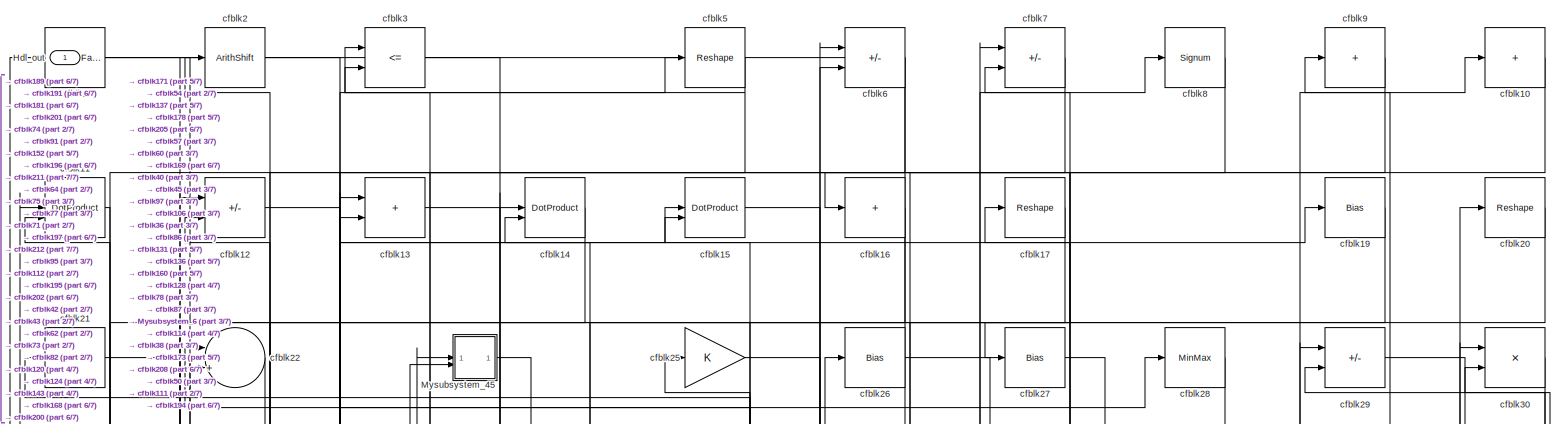
[diagram: root canvas - part 1/7, full width, top band]
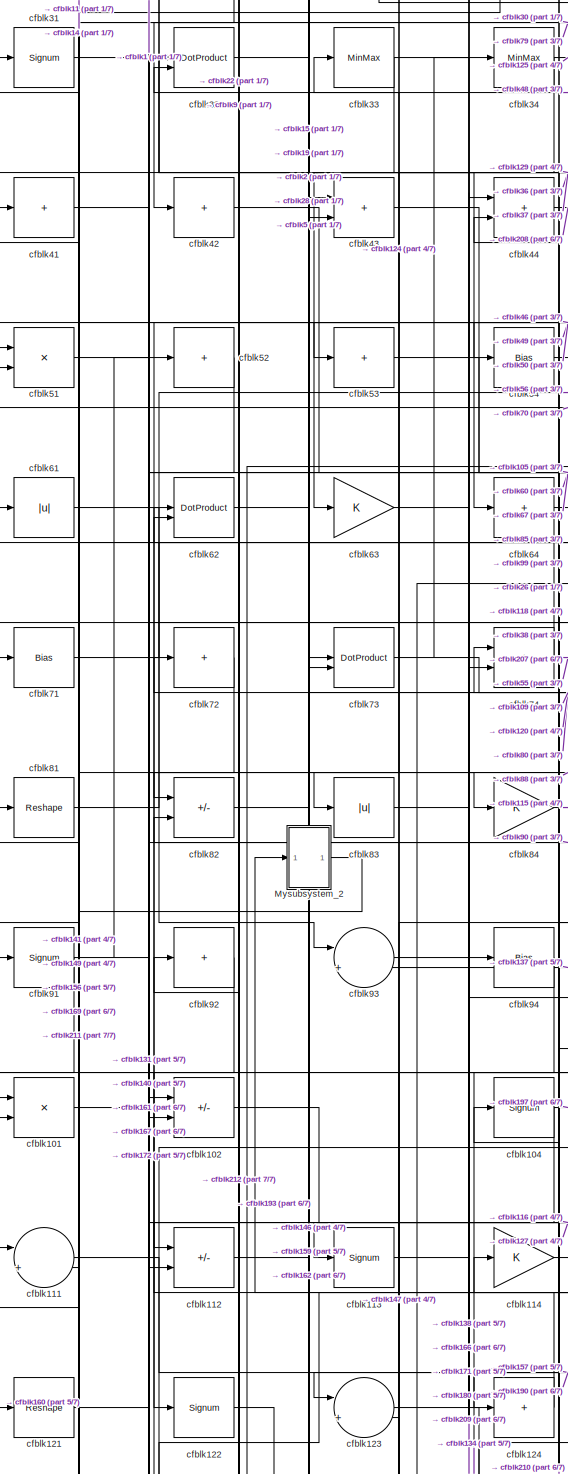
[diagram: root canvas - part 2/7, middle left region]
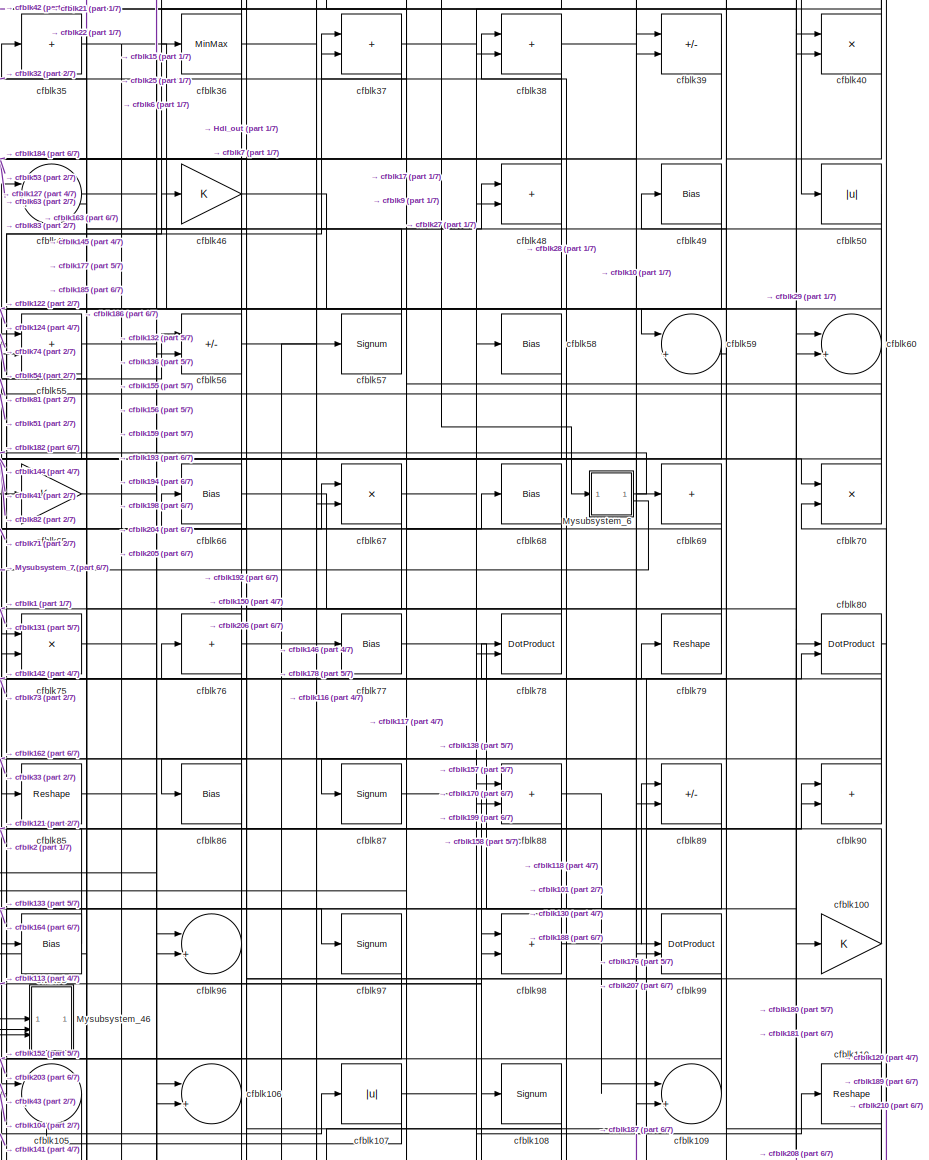
[diagram: root canvas - part 3/7, top right region]
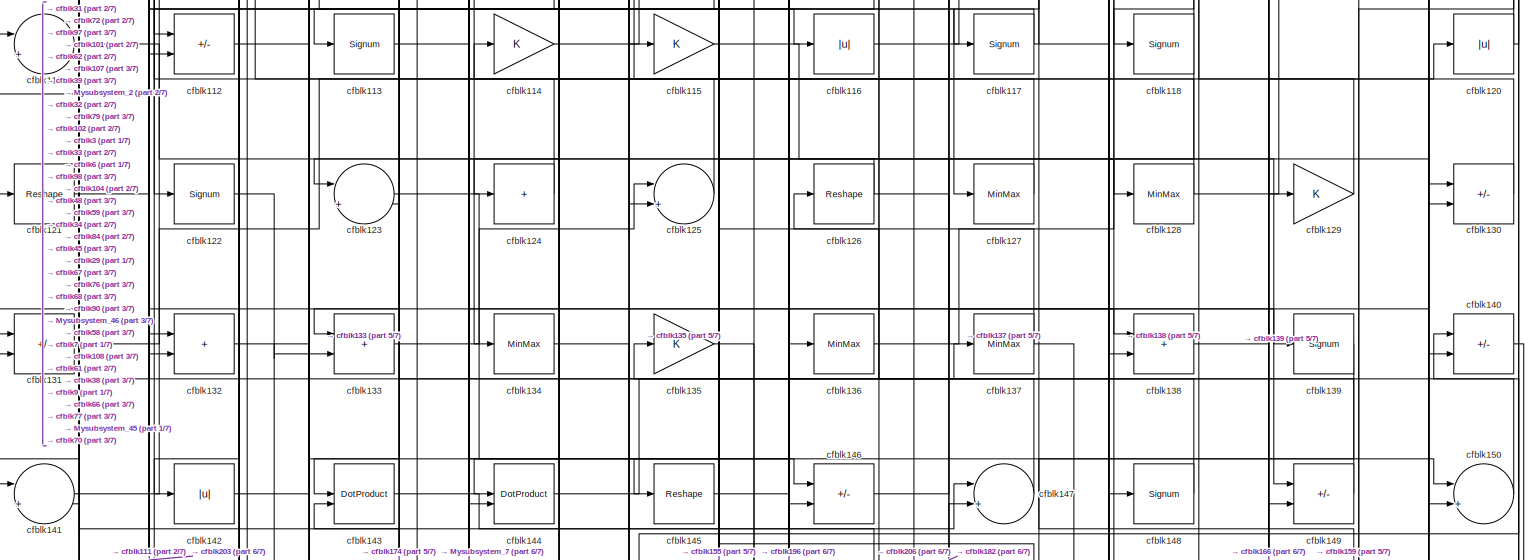
[diagram: root canvas - part 4/7, full width, middle band]
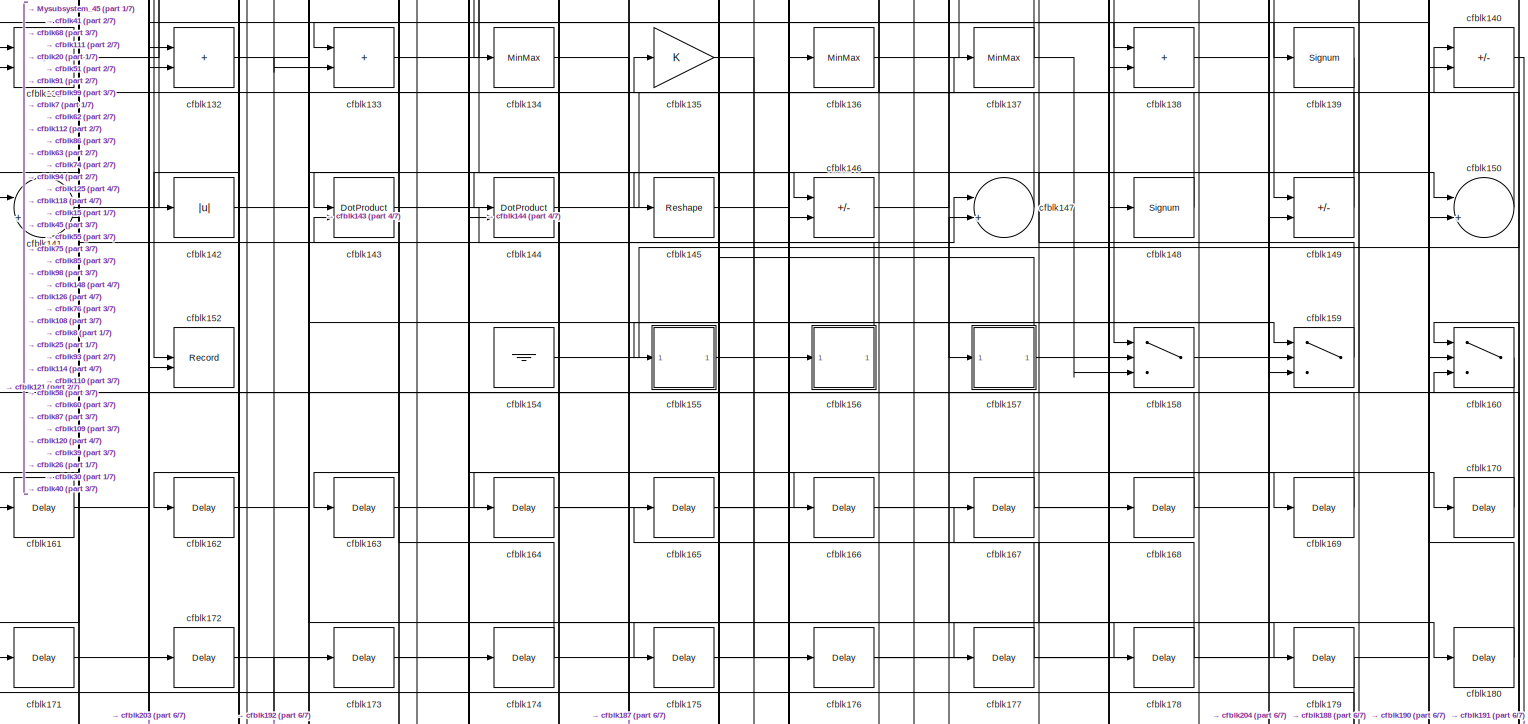
[diagram: root canvas - part 5/7, full width, bottom band]
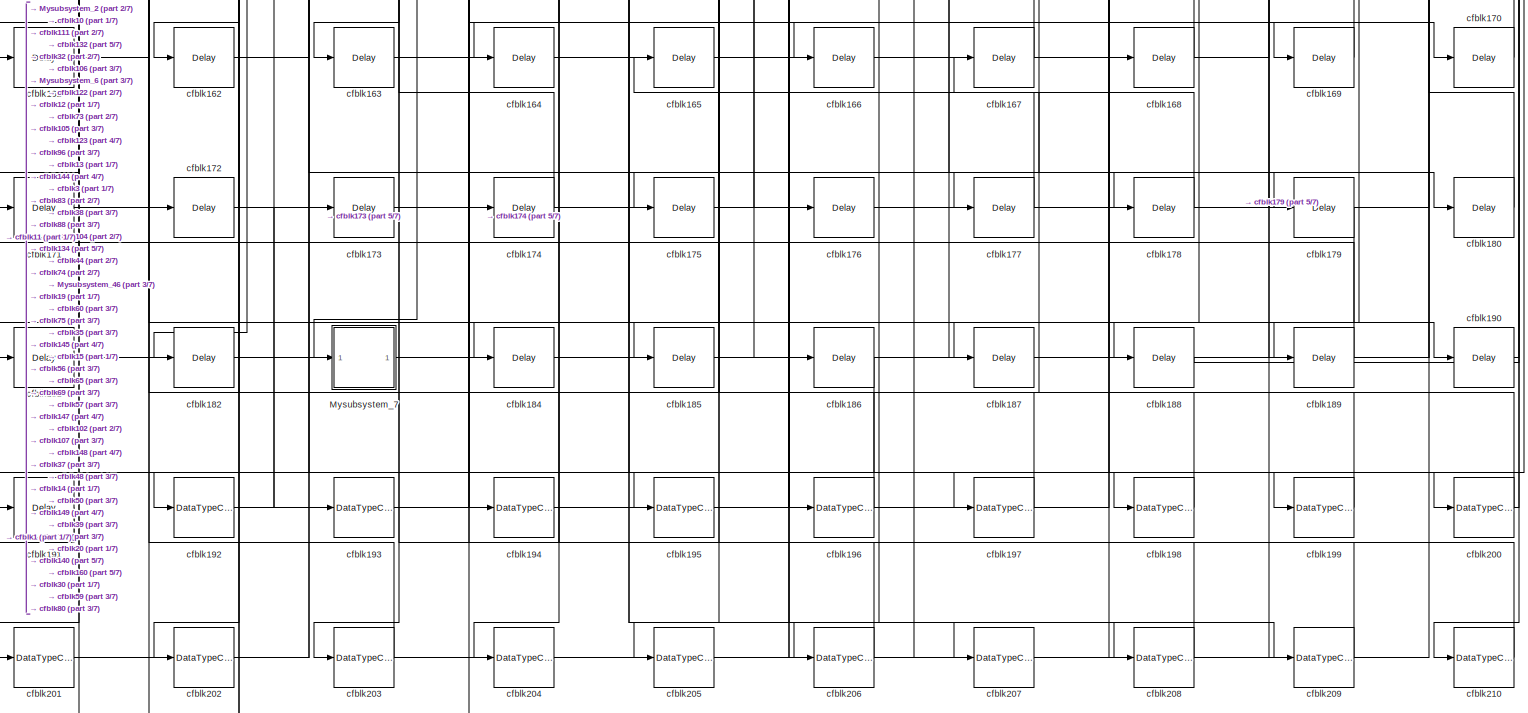
[diagram: root canvas - part 6/7, full width, bottom band]
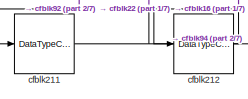
[diagram: root canvas - part 7/7, bottom left region]
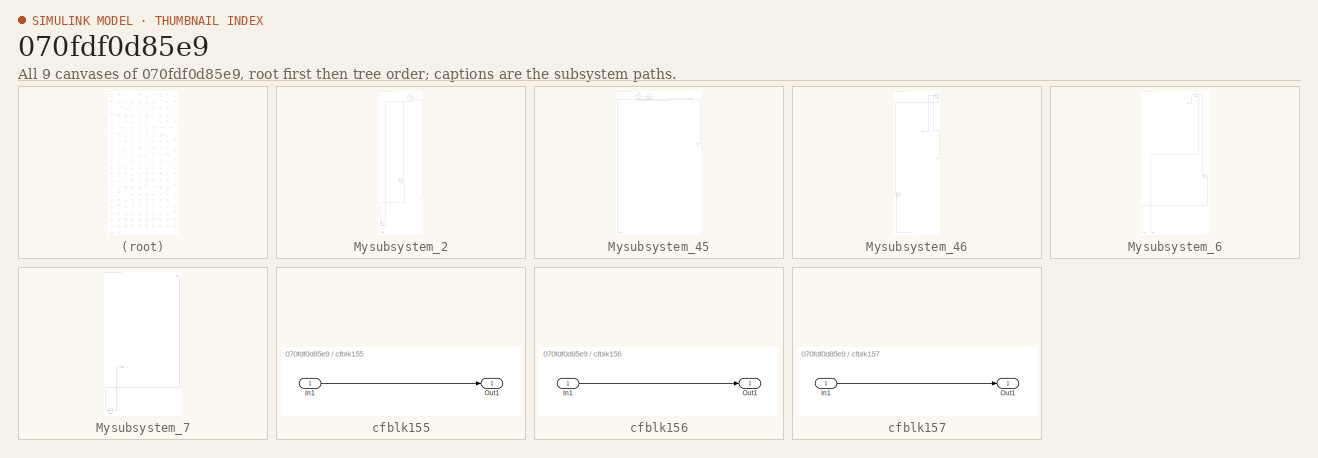
[diagram: thumbnail index - all 9 canvases of the model, root first then tree order]
MODEL slx_070fdf0d85e9
KIND model
CONFIG AbsTol = auto
CONFIG EnableMultiTasking = off
CONFIG FixedStep = auto
CONFIG MaxStep = auto
CONFIG MinStep = auto
CONFIG RelTol = 1e-3
CONFIG SampleTimeConstraint = Unconstrained
CONFIG SolverName = VariableStepAuto
CONFIG StartTime = 0.0
CONFIG StopTime = 10.0
BLOCK [Outport] Hdl_out
  OutDataTypeStr = uint8
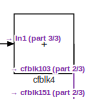
[diagram: Mysubsystem_2 - part 1/3, top right region]
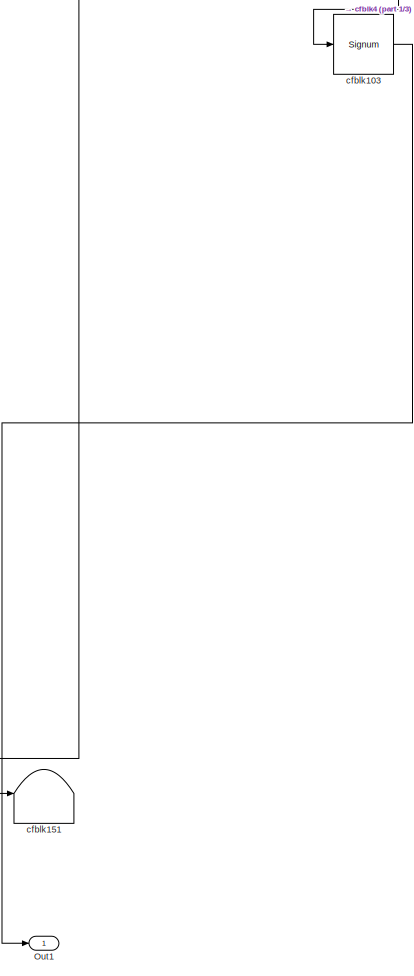
[diagram: Mysubsystem_2 - part 2/3, bottom left region]
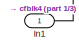
[diagram: Mysubsystem_2 - part 3/3, bottom right region]
BLOCK [SubSystem] Mysubsystem_2
  RTWFcnName = Mysubsystem_2
  RTWFcnNameOpts = User specified
  RTWFileNameOpts = Use function name
  RTWSystemCode = Reusable function
  TreatAsAtomicUnit = on
BLOCK [Inport] Mysubsystem_2/In1
BLOCK [Outport] Mysubsystem_2/Out1
BLOCK [Signum] Mysubsystem_2/cfblk103
BLOCK [Terminator] Mysubsystem_2/cfblk151
BLOCK [Sum] Mysubsystem_2/cfblk4
  IconShape = rectangular
  Inputs = +
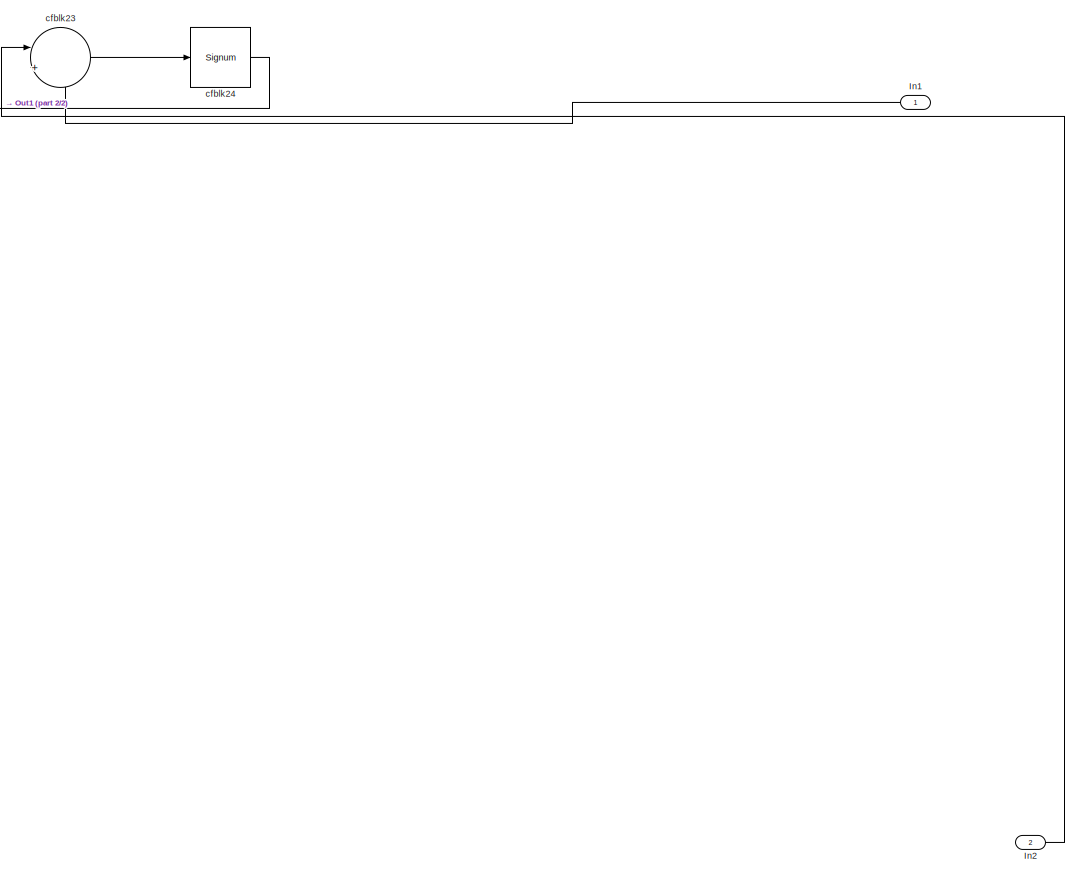
[diagram: Mysubsystem_45 - part 1/2, full width, top band]
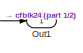
[diagram: Mysubsystem_45 - part 2/2, bottom left region]
BLOCK [SubSystem] Mysubsystem_45
  RTWFcnName = Mysubsystem_45
  RTWFcnNameOpts = User specified
  RTWFileNameOpts = Use function name
  RTWSystemCode = Reusable function
  TreatAsAtomicUnit = on
BLOCK [Inport] Mysubsystem_45/In1
BLOCK [Inport] Mysubsystem_45/In2
  Port = 2
BLOCK [Outport] Mysubsystem_45/Out1
BLOCK [Sum] Mysubsystem_45/cfblk23
  Inputs = |++
BLOCK [Signum] Mysubsystem_45/cfblk24
BLOCK [SubSystem] Mysubsystem_46
  RTWFcnName = Mysubsystem_46
  RTWFcnNameOpts = User specified
  RTWFileNameOpts = Use function name
  RTWSystemCode = Reusable function
  TreatAsAtomicUnit = on
BLOCK [Inport] Mysubsystem_46/In1
BLOCK [Inport] Mysubsystem_46/In2
  Port = 2
BLOCK [Inport] Mysubsystem_46/In3
  Port = 3
BLOCK [Record] Mysubsystem_46/cfblk153
  CompatibilityTag = XY
  FileSettingsInternal = {"entries":[{"content":{"excelSettings":{"content":{},"type":"Streamout.ExcelSettings"}},"type":"Streamout.FileSettingStorage","uuid":""}],"packageUris":["http:\/\/schema.mathworks.com\/mf0\/streamout_blocks\/R2020a"],"version":"1.0"}
  Layout = [1 1]
  SignalsInternal = {"entries":[{"content":{},"type":"RecordBlkView.InputSignals","uuid":""}],"packageUris":["http:\/\/schema.mathworks.com\/mf0\/streamout_blocks\/R2020a"],"version":"1.0"}
  VisualizationBindings = {"xyplotplugin":{"info":[{"series":[],"subplotID":1}]}}
  st = -1
BLOCK [DotProduct] Mysubsystem_46/cfblk47
  OutDataTypeStr = Inherit: Inherit via internal rule
BLOCK [SubSystem] Mysubsystem_6
  RTWFcnName = Mysubsystem_6
  RTWFcnNameOpts = User specified
  RTWFileNameOpts = Use function name
  RTWSystemCode = Reusable function
  TreatAsAtomicUnit = on
BLOCK [Inport] Mysubsystem_6/In1
BLOCK [Outport] Mysubsystem_6/Out1
BLOCK [Outport] Mysubsystem_6/Out2
  Port = 2
BLOCK [Gain] Mysubsystem_6/cfblk119
BLOCK [Bias] Mysubsystem_6/cfblk18
  Bias = 0.0
  SaturateOnIntegerOverflow = off
BLOCK [SubSystem] Mysubsystem_7
  RTWFcnName = Mysubsystem_7
  RTWFcnNameOpts = User specified
  RTWFileNameOpts = Use function name
  RTWSystemCode = Reusable function
  TreatAsAtomicUnit = on
BLOCK [Inport] Mysubsystem_7/In1
BLOCK [Outport] Mysubsystem_7/Out1
BLOCK [Delay] Mysubsystem_7/cfblk183
  InputPortMap = u0
  SampleTime = 1
BLOCK [Reference] cfblk1  REF=hdlsllib/Logic and Bit
Operations/Detect Fall
Nonpositive
  SourceBlock = hdlsllib/Logic and Bit\nOperations/Detect Fall\nNonpositive
  SourceType = Detect Fall Nonpositive
BLOCK [Sum] cfblk10
  IconShape = rectangular
  Inputs = +
  OutDataTypeStr = uint8
BLOCK [Gain] cfblk100
  OutDataTypeStr = uint8
BLOCK [Product] cfblk101
  Inputs = */
  OutDataTypeStr = uint8
  RndMeth = Zero
  SaturateOnIntegerOverflow = on
BLOCK [Sum] cfblk102
  IconShape = rectangular
  Inputs = +-
  OutDataTypeStr = uint8
BLOCK [Signum] cfblk104
BLOCK [Sum] cfblk105
  Inputs = |++
  OutDataTypeStr = uint8
BLOCK [Sum] cfblk106
  Inputs = |++
  OutDataTypeStr = uint8
BLOCK [Abs] cfblk107
  OutDataTypeStr = uint8
  SaturateOnIntegerOverflow = off
BLOCK [Signum] cfblk108
BLOCK [Sum] cfblk109
  Inputs = |++
  OutDataTypeStr = uint8
BLOCK [DotProduct] cfblk11
  OutDataTypeStr = uint8
BLOCK [Reshape] cfblk110
BLOCK [Sum] cfblk111
  Inputs = |++
  OutDataTypeStr = uint8
BLOCK [Sum] cfblk112
  IconShape = rectangular
  Inputs = +-
  OutDataTypeStr = uint8
BLOCK [Signum] cfblk113
BLOCK [Gain] cfblk114
  OutDataTypeStr = uint8
BLOCK [Gain] cfblk115
  OutDataTypeStr = uint8
BLOCK [Abs] cfblk116
  OutDataTypeStr = uint8
  SaturateOnIntegerOverflow = off
BLOCK [Signum] cfblk117
BLOCK [Signum] cfblk118
BLOCK [Sum] cfblk12
  IconShape = rectangular
  Inputs = +-
  OutDataTypeStr = uint8
BLOCK [Abs] cfblk120
  OutDataTypeStr = uint8
  SaturateOnIntegerOverflow = off
BLOCK [Reshape] cfblk121
BLOCK [Signum] cfblk122
BLOCK [Sum] cfblk123
  Inputs = |++
  OutDataTypeStr = uint8
BLOCK [Sum] cfblk124
  IconShape = rectangular
  Inputs = +
  OutDataTypeStr = uint8
BLOCK [Sum] cfblk125
  Inputs = |++
  OutDataTypeStr = uint8
BLOCK [Reshape] cfblk126
BLOCK [MinMax] cfblk127
  OutDataTypeStr = uint8
BLOCK [MinMax] cfblk128
  OutDataTypeStr = uint8
BLOCK [Gain] cfblk129
  OutDataTypeStr = uint8
BLOCK [Sum] cfblk13
  IconShape = rectangular
  OutDataTypeStr = uint8
BLOCK [Sum] cfblk130
  IconShape = rectangular
  Inputs = +-
  OutDataTypeStr = uint8
BLOCK [Sum] cfblk131
  IconShape = rectangular
  Inputs = +-
  OutDataTypeStr = uint8
BLOCK [Sum] cfblk132
  IconShape = rectangular
  OutDataTypeStr = uint8
BLOCK [Sum] cfblk133
  IconShape = rectangular
  OutDataTypeStr = uint8
BLOCK [MinMax] cfblk134
  OutDataTypeStr = uint8
BLOCK [Gain] cfblk135
  OutDataTypeStr = uint8
BLOCK [MinMax] cfblk136
  OutDataTypeStr = uint8
BLOCK [MinMax] cfblk137
  OutDataTypeStr = uint8
BLOCK [Sum] cfblk138
  IconShape = rectangular
  OutDataTypeStr = uint8
BLOCK [Signum] cfblk139
BLOCK [DotProduct] cfblk14
  OutDataTypeStr = uint8
BLOCK [Sum] cfblk140
  IconShape = rectangular
  Inputs = +-
  OutDataTypeStr = uint8
BLOCK [Sum] cfblk141
  Inputs = |++
  OutDataTypeStr = uint8
BLOCK [Abs] cfblk142
  OutDataTypeStr = uint8
  SaturateOnIntegerOverflow = off
BLOCK [DotProduct] cfblk143
  OutDataTypeStr = uint8
BLOCK [DotProduct] cfblk144
  OutDataTypeStr = uint8
BLOCK [Reshape] cfblk145
BLOCK [Sum] cfblk146
  IconShape = rectangular
  Inputs = +-
  OutDataTypeStr = uint8
BLOCK [Sum] cfblk147
  Inputs = |++
  OutDataTypeStr = uint8
BLOCK [Signum] cfblk148
BLOCK [Sum] cfblk149
  IconShape = rectangular
  Inputs = +-
  OutDataTypeStr = uint8
BLOCK [DotProduct] cfblk15
  OutDataTypeStr = uint8
BLOCK [Sum] cfblk150
  Inputs = |++
  OutDataTypeStr = uint8
BLOCK [Record] cfblk152
  CompatibilityTag = XY
  FileSettingsInternal = {"entries":[{"content":{"excelSettings":{"content":{},"type":"Streamout.ExcelSettings"}},"type":"Streamout.FileSettingStorage","uuid":""}],"packageUris":["http:\/\/schema.mathworks.com\/mf0\/streamout_blocks\/R2020a"],"version":"1.0"}
  Layout = [1 1]
  SignalsInternal = {"entries":[{"content":{"signals":[{"content":{"blockPath":[],"dimensions":[1],"domain":"","lineColor":"#a2142f","plots":[1],"port":1,"signalID":13158,"signalName":"cfblk99"},"type":"RecordBlkView.Signal","uuid":""},{"content":{"blockPath":[],"dimensions":[1],"domain":"","lineColor":"#139fff","plots":[1],"port":2,"signalID":13161,"signalName":"cfblk20"},"type":"RecordBlkView.Signal","uuid":""}]},"...<+142ch>
  VisualizationBindings = {"xyplotplugin":{"info":[{"series":[{"bindingParametersList":[{"parameter":"X-Axis","signalID":13158,"signalName":"cfblk99"},{"parameter":"Y-Axis","signalID":13161,"signalName":"cfblk20"}],"seriesID":6680}],"subplotID":1}]}}
  st = -1
BLOCK [Ground] cfblk154
BLOCK [SubSystem] cfblk155
  LibrarySourceBlock = hdlsllib/Ports &\nSubsystems/Subsystem
BLOCK [Inport] cfblk155/In1
BLOCK [Outport] cfblk155/Out1
BLOCK [SubSystem] cfblk156
  LibrarySourceBlock = hdlsllib/Ports &\nSubsystems/Subsystem
BLOCK [Inport] cfblk156/In1
BLOCK [Outport] cfblk156/Out1
BLOCK [SubSystem] cfblk157
  LibrarySourceBlock = hdlsllib/Ports &\nSubsystems/Subsystem
BLOCK [Inport] cfblk157/In1
BLOCK [Outport] cfblk157/Out1
BLOCK [Switch] cfblk158
  InputSameDT = off
  OutDataTypeStr = uint8
  SaturateOnIntegerOverflow = off
BLOCK [Switch] cfblk159
  InputSameDT = off
  OutDataTypeStr = uint8
  SaturateOnIntegerOverflow = off
BLOCK [Sum] cfblk16
  IconShape = rectangular
  Inputs = +
  OutDataTypeStr = uint8
BLOCK [Switch] cfblk160
  InputSameDT = off
  OutDataTypeStr = uint8
  SaturateOnIntegerOverflow = off
BLOCK [Delay] cfblk161
  InputPortMap = u0
  SampleTime = 1
BLOCK [Delay] cfblk162
  InputPortMap = u0
  SampleTime = 1
BLOCK [Delay] cfblk163
  InputPortMap = u0
  SampleTime = 1
BLOCK [Delay] cfblk164
  InputPortMap = u0
  SampleTime = 1
BLOCK [Delay] cfblk165
  InputPortMap = u0
  SampleTime = 1
BLOCK [Delay] cfblk166
  InputPortMap = u0
  SampleTime = 1
BLOCK [Delay] cfblk167
  InputPortMap = u0
  SampleTime = 1
BLOCK [Delay] cfblk168
  InputPortMap = u0
  SampleTime = 1
BLOCK [Delay] cfblk169
  InputPortMap = u0
  SampleTime = 1
BLOCK [Reshape] cfblk17
BLOCK [Delay] cfblk170
  InputPortMap = u0
  SampleTime = 1
BLOCK [Delay] cfblk171
  InputPortMap = u0
  SampleTime = 1
BLOCK [Delay] cfblk172
  InputPortMap = u0
  SampleTime = 1
BLOCK [Delay] cfblk173
  InputPortMap = u0
  SampleTime = 1
BLOCK [Delay] cfblk174
  InputPortMap = u0
  SampleTime = 1
BLOCK [Delay] cfblk175
  InputPortMap = u0
  SampleTime = 1
BLOCK [Delay] cfblk176
  InputPortMap = u0
  SampleTime = 1
BLOCK [Delay] cfblk177
  InputPortMap = u0
  SampleTime = 1
BLOCK [Delay] cfblk178
  InputPortMap = u0
  SampleTime = 1
BLOCK [Delay] cfblk179
  InputPortMap = u0
  SampleTime = 1
BLOCK [Delay] cfblk180
  InputPortMap = u0
  SampleTime = 1
BLOCK [Delay] cfblk181
  InputPortMap = u0
  SampleTime = 1
BLOCK [Delay] cfblk182
  InputPortMap = u0
  SampleTime = 1
BLOCK [Delay] cfblk184
  InputPortMap = u0
  SampleTime = 1
BLOCK [Delay] cfblk185
  InputPortMap = u0
  SampleTime = 1
BLOCK [Delay] cfblk186
  InputPortMap = u0
  SampleTime = 1
BLOCK [Delay] cfblk187
  InputPortMap = u0
  SampleTime = 1
BLOCK [Delay] cfblk188
  InputPortMap = u0
  SampleTime = 1
BLOCK [Delay] cfblk189
  InputPortMap = u0
  SampleTime = 1
BLOCK [Bias] cfblk19
  Bias = 0.0
  SaturateOnIntegerOverflow = off
BLOCK [Delay] cfblk190
  InputPortMap = u0
  SampleTime = 1
BLOCK [Delay] cfblk191
  InputPortMap = u0
  SampleTime = 1
BLOCK [DataTypeConversion] cfblk192
  OutDataTypeStr = uint8
  RndMeth = Floor
  SaturateOnIntegerOverflow = off
BLOCK [DataTypeConversion] cfblk193
  OutDataTypeStr = uint8
  RndMeth = Floor
  SaturateOnIntegerOverflow = off
BLOCK [DataTypeConversion] cfblk194
  OutDataTypeStr = uint8
  RndMeth = Floor
  SaturateOnIntegerOverflow = off
BLOCK [DataTypeConversion] cfblk195
  OutDataTypeStr = uint8
  RndMeth = Floor
  SaturateOnIntegerOverflow = off
BLOCK [DataTypeConversion] cfblk196
  OutDataTypeStr = uint8
  RndMeth = Floor
  SaturateOnIntegerOverflow = off
BLOCK [DataTypeConversion] cfblk197
  OutDataTypeStr = uint8
  RndMeth = Floor
  SaturateOnIntegerOverflow = off
BLOCK [DataTypeConversion] cfblk198
  OutDataTypeStr = uint8
  RndMeth = Floor
  SaturateOnIntegerOverflow = off
BLOCK [DataTypeConversion] cfblk199
  OutDataTypeStr = uint8
  RndMeth = Floor
  SaturateOnIntegerOverflow = off
BLOCK [ArithShift] cfblk2
  BitShiftNumber = 8
  InputPortMap = u0
BLOCK [Reshape] cfblk20
BLOCK [DataTypeConversion] cfblk200
  OutDataTypeStr = uint8
  RndMeth = Floor
  SaturateOnIntegerOverflow = off
BLOCK [DataTypeConversion] cfblk201
  OutDataTypeStr = uint8
  RndMeth = Floor
  SaturateOnIntegerOverflow = off
BLOCK [DataTypeConversion] cfblk202
  OutDataTypeStr = uint8
  RndMeth = Floor
  SaturateOnIntegerOverflow = off
BLOCK [DataTypeConversion] cfblk203
  OutDataTypeStr = uint8
  RndMeth = Floor
  SaturateOnIntegerOverflow = off
BLOCK [DataTypeConversion] cfblk204
  OutDataTypeStr = uint8
  RndMeth = Floor
  SaturateOnIntegerOverflow = off
BLOCK [DataTypeConversion] cfblk205
  OutDataTypeStr = uint8
  RndMeth = Floor
  SaturateOnIntegerOverflow = off
BLOCK [DataTypeConversion] cfblk206
  OutDataTypeStr = uint8
  RndMeth = Floor
  SaturateOnIntegerOverflow = off
BLOCK [DataTypeConversion] cfblk207
  OutDataTypeStr = uint8
  RndMeth = Floor
  SaturateOnIntegerOverflow = off
BLOCK [DataTypeConversion] cfblk208
  OutDataTypeStr = uint8
  RndMeth = Floor
  SaturateOnIntegerOverflow = off
BLOCK [DataTypeConversion] cfblk209
  OutDataTypeStr = uint8
  RndMeth = Floor
  SaturateOnIntegerOverflow = off
BLOCK [Sum] cfblk21
  IconShape = rectangular
  Inputs = +
  OutDataTypeStr = uint8
BLOCK [DataTypeConversion] cfblk210
  OutDataTypeStr = uint8
  RndMeth = Floor
  SaturateOnIntegerOverflow = off
BLOCK [DataTypeConversion] cfblk211
  OutDataTypeStr = uint8
  RndMeth = Floor
  SaturateOnIntegerOverflow = off
BLOCK [DataTypeConversion] cfblk212
  OutDataTypeStr = uint8
  RndMeth = Floor
  SaturateOnIntegerOverflow = off
BLOCK [Sum] cfblk22
  Inputs = |++
  OutDataTypeStr = uint8
BLOCK [Gain] cfblk25
  OutDataTypeStr = uint8
BLOCK [Bias] cfblk26
  Bias = 0.0
  SaturateOnIntegerOverflow = off
BLOCK [Bias] cfblk27
  Bias = 0.0
  SaturateOnIntegerOverflow = off
BLOCK [MinMax] cfblk28
  OutDataTypeStr = uint8
BLOCK [Sum] cfblk29
  IconShape = rectangular
  Inputs = +-
  OutDataTypeStr = uint8
BLOCK [RelationalOperator] cfblk3
  InputSameDT = off
  Operator = <=
  OutDataTypeStr = boolean
BLOCK [Product] cfblk30
  Inputs = */
  OutDataTypeStr = uint8
  RndMeth = Zero
  SaturateOnIntegerOverflow = on
BLOCK [Signum] cfblk31
BLOCK [DotProduct] cfblk32
  OutDataTypeStr = uint8
BLOCK [MinMax] cfblk33
  OutDataTypeStr = uint8
BLOCK [MinMax] cfblk34
  OutDataTypeStr = uint8
BLOCK [Sum] cfblk35
  IconShape = rectangular
  Inputs = +
  OutDataTypeStr = uint8
BLOCK [MinMax] cfblk36
  OutDataTypeStr = uint8
BLOCK [Sum] cfblk37
  IconShape = rectangular
  OutDataTypeStr = uint8
BLOCK [Sum] cfblk38
  IconShape = rectangular
  OutDataTypeStr = uint8
BLOCK [Sum] cfblk39
  IconShape = rectangular
  Inputs = +-
  OutDataTypeStr = uint8
BLOCK [Product] cfblk40
  Inputs = */
  OutDataTypeStr = uint8
  RndMeth = Zero
  SaturateOnIntegerOverflow = on
BLOCK [Sum] cfblk41
  IconShape = rectangular
  Inputs = +
  OutDataTypeStr = uint8
BLOCK [Sum] cfblk42
  IconShape = rectangular
  Inputs = +
  OutDataTypeStr = uint8
BLOCK [Sum] cfblk43
  IconShape = rectangular
  OutDataTypeStr = uint8
BLOCK [Sum] cfblk44
  IconShape = rectangular
  OutDataTypeStr = uint8
BLOCK [Sum] cfblk45
  Inputs = |++
  OutDataTypeStr = uint8
BLOCK [Gain] cfblk46
  OutDataTypeStr = uint8
BLOCK [Sum] cfblk48
  IconShape = rectangular
  OutDataTypeStr = uint8
BLOCK [Bias] cfblk49
  Bias = 0.0
  SaturateOnIntegerOverflow = off
BLOCK [Reshape] cfblk5
BLOCK [Abs] cfblk50
  OutDataTypeStr = uint8
  SaturateOnIntegerOverflow = off
BLOCK [Product] cfblk51
  Inputs = */
  OutDataTypeStr = uint8
  RndMeth = Zero
  SaturateOnIntegerOverflow = on
BLOCK [Sum] cfblk52
  IconShape = rectangular
  Inputs = +
  OutDataTypeStr = uint8
BLOCK [Sum] cfblk53
  IconShape = rectangular
  Inputs = +
  OutDataTypeStr = uint8
BLOCK [Bias] cfblk54
  Bias = 0.0
  SaturateOnIntegerOverflow = off
BLOCK [Sum] cfblk55
  IconShape = rectangular
  OutDataTypeStr = uint8
BLOCK [Sum] cfblk56
  IconShape = rectangular
  Inputs = +-
  OutDataTypeStr = uint8
BLOCK [Signum] cfblk57
BLOCK [Bias] cfblk58
  Bias = 0.0
  SaturateOnIntegerOverflow = off
BLOCK [Sum] cfblk59
  Inputs = |++
  OutDataTypeStr = uint8
BLOCK [Sum] cfblk6
  IconShape = rectangular
  Inputs = +-
  OutDataTypeStr = uint8
BLOCK [Sum] cfblk60
  Inputs = |++
  OutDataTypeStr = uint8
BLOCK [Abs] cfblk61
  OutDataTypeStr = uint8
  SaturateOnIntegerOverflow = off
BLOCK [DotProduct] cfblk62
  OutDataTypeStr = uint8
BLOCK [Gain] cfblk63
  OutDataTypeStr = uint8
BLOCK [Sum] cfblk64
  IconShape = rectangular
  Inputs = +
  OutDataTypeStr = uint8
BLOCK [Gain] cfblk65
  OutDataTypeStr = uint8
BLOCK [Bias] cfblk66
  Bias = 0.0
  SaturateOnIntegerOverflow = off
BLOCK [Product] cfblk67
  Inputs = */
  OutDataTypeStr = uint8
  RndMeth = Zero
  SaturateOnIntegerOverflow = on
BLOCK [Bias] cfblk68
  Bias = 0.0
  SaturateOnIntegerOverflow = off
BLOCK [Sum] cfblk69
  IconShape = rectangular
  Inputs = +
  OutDataTypeStr = uint8
BLOCK [Sum] cfblk7
  IconShape = rectangular
  Inputs = +-
  OutDataTypeStr = uint8
BLOCK [Product] cfblk70
  Inputs = */
  OutDataTypeStr = uint8
  RndMeth = Zero
  SaturateOnIntegerOverflow = on
BLOCK [Bias] cfblk71
  Bias = 0.0
  SaturateOnIntegerOverflow = off
BLOCK [Sum] cfblk72
  IconShape = rectangular
  Inputs = +
  OutDataTypeStr = uint8
BLOCK [DotProduct] cfblk73
  OutDataTypeStr = uint8
BLOCK [Sum] cfblk74
  IconShape = rectangular
  OutDataTypeStr = uint8
BLOCK [Product] cfblk75
  Inputs = */
  OutDataTypeStr = uint8
  RndMeth = Zero
  SaturateOnIntegerOverflow = on
BLOCK [Sum] cfblk76
  IconShape = rectangular
  Inputs = +
  OutDataTypeStr = uint8
BLOCK [Bias] cfblk77
  Bias = 0.0
  SaturateOnIntegerOverflow = off
BLOCK [DotProduct] cfblk78
  OutDataTypeStr = uint8
BLOCK [Reshape] cfblk79
BLOCK [Signum] cfblk8
BLOCK [DotProduct] cfblk80
  OutDataTypeStr = uint8
BLOCK [Reshape] cfblk81
BLOCK [Sum] cfblk82
  IconShape = rectangular
  Inputs = +-
  OutDataTypeStr = uint8
BLOCK [Abs] cfblk83
  OutDataTypeStr = uint8
  SaturateOnIntegerOverflow = off
BLOCK [Gain] cfblk84
  OutDataTypeStr = uint8
BLOCK [Reshape] cfblk85
BLOCK [Bias] cfblk86
  Bias = 0.0
  SaturateOnIntegerOverflow = off
BLOCK [Signum] cfblk87
BLOCK [Sum] cfblk88
  IconShape = rectangular
  OutDataTypeStr = uint8
BLOCK [Sum] cfblk89
  IconShape = rectangular
  Inputs = +-
  OutDataTypeStr = uint8
BLOCK [Sum] cfblk9
  IconShape = rectangular
  Inputs = +
  OutDataTypeStr = uint8
BLOCK [Sum] cfblk90
  IconShape = rectangular
  OutDataTypeStr = uint8
BLOCK [Signum] cfblk91
BLOCK [Sum] cfblk92
  IconShape = rectangular
  Inputs = +
  OutDataTypeStr = uint8
BLOCK [Sum] cfblk93
  Inputs = |++
  OutDataTypeStr = uint8
BLOCK [Bias] cfblk94
  Bias = 0.0
  SaturateOnIntegerOverflow = off
BLOCK [Bias] cfblk95
  Bias = 0.0
  SaturateOnIntegerOverflow = off
BLOCK [Sum] cfblk96
  Inputs = |++
  OutDataTypeStr = uint8
BLOCK [Signum] cfblk97
BLOCK [Sum] cfblk98
  IconShape = rectangular
  OutDataTypeStr = uint8
BLOCK [DotProduct] cfblk99
  OutDataTypeStr = uint8
LINE Mysubsystem_2/In1:1 -> Mysubsystem_2/cfblk4:1
LINE Mysubsystem_2/cfblk103:1 -> Mysubsystem_2/Out1:1
NET Mysubsystem_2/cfblk4:1 -> Mysubsystem_2/cfblk103:1, Mysubsystem_2/cfblk151:1
LINE Mysubsystem_2:1 -> cfblk161:1
LINE Mysubsystem_45/In1:1 -> Mysubsystem_45/cfblk23:2
LINE Mysubsystem_45/In2:1 -> Mysubsystem_45/cfblk23:1
LINE Mysubsystem_45/cfblk23:1 -> Mysubsystem_45/cfblk24:1
LINE Mysubsystem_45/cfblk24:1 -> Mysubsystem_45/Out1:1
LINE Mysubsystem_45:1 -> cfblk171:1
LINE Mysubsystem_46/In1:1 -> Mysubsystem_46/cfblk47:1
LINE Mysubsystem_46/In2:1 -> Mysubsystem_46/cfblk47:2
LINE Mysubsystem_46/In3:1 -> Mysubsystem_46/cfblk153:2
LINE Mysubsystem_46/cfblk47:1 -> Mysubsystem_46/cfblk153:1
LINE Mysubsystem_6/In1:1 -> Mysubsystem_6/cfblk18:1
LINE Mysubsystem_6/cfblk119:1 -> Mysubsystem_6/Out1:1
NET Mysubsystem_6/cfblk18:1 -> Mysubsystem_6/Out2:1, Mysubsystem_6/cfblk119:1
LINE Mysubsystem_6:1 -> cfblk182:1
LINE Mysubsystem_6:2 -> Mysubsystem_7:1
LINE Mysubsystem_7/In1:1 -> Mysubsystem_7/cfblk183:1
LINE Mysubsystem_7/cfblk183:1 -> Mysubsystem_7/Out1:1
LINE Mysubsystem_7:1 -> cfblk144:2
NET cfblk100:1 -> cfblk46:1, cfblk49:1
LINE cfblk101:1 -> cfblk116:1
LINE cfblk102:1 -> cfblk127:1
NET cfblk104:1 -> cfblk112:2, cfblk197:1, cfblk37:1
LINE cfblk105:1 -> cfblk163:1
NET cfblk106:1 -> Hdl_out:1, cfblk192:1
NET cfblk107:1 -> cfblk105:2, cfblk170:1
LINE cfblk108:1 -> cfblk118:1
LINE cfblk109:1 -> cfblk74:1
NET cfblk10:1 -> cfblk181:1, cfblk27:1
NET cfblk110:1 -> cfblk189:1, cfblk66:1
NET cfblk111:1 -> cfblk149:1, cfblk157:1, cfblk190:1
NET cfblk112:1 -> cfblk159:2, cfblk15:1
LINE cfblk113:1 -> cfblk98:2
LINE cfblk114:1 -> cfblk29:1
LINE cfblk115:1 -> cfblk128:1
LINE cfblk116:1 -> cfblk90:1
NET cfblk117:1 -> Mysubsystem_46:2, cfblk113:1, cfblk130:2
NET cfblk118:1 -> cfblk155:1, cfblk61:1
LINE cfblk11:1 -> cfblk201:1
NET cfblk120:1 -> Mysubsystem_45:2, cfblk70:2, cfblk72:1
NET cfblk121:1 -> cfblk81:1, cfblk90:2
NET cfblk122:1 -> cfblk193:1, cfblk82:2
NET cfblk123:1 -> cfblk146:2, cfblk150:1
NET cfblk124:1 -> cfblk3:1, cfblk62:1
LINE cfblk125:1 -> Mysubsystem_2:1
NET cfblk126:1 -> cfblk123:1, cfblk139:1
LINE cfblk127:1 -> cfblk45:1
NET cfblk128:1 -> cfblk7:2, cfblk9:1
LINE cfblk129:1 -> cfblk104:1
LINE cfblk12:1 -> cfblk195:1
LINE cfblk130:1 -> cfblk38:1
LINE cfblk131:1 -> cfblk7:1
NET cfblk132:1 -> cfblk133:2, cfblk179:1
LINE cfblk133:1 -> cfblk125:1
NET cfblk134:1 -> cfblk159:3, cfblk187:1
NET cfblk135:1 -> cfblk175:1, cfblk176:1
NET cfblk136:1 -> cfblk108:1, cfblk8:1
NET cfblk137:1 -> cfblk158:3, cfblk25:1, cfblk93:2
LINE cfblk138:1 -> cfblk120:1
LINE cfblk139:1 -> cfblk177:1
LINE cfblk13:1 -> cfblk200:1
LINE cfblk140:1 -> cfblk191:1
LINE cfblk141:1 -> cfblk107:1
LINE cfblk142:1 -> cfblk79:1
LINE cfblk143:1 -> cfblk147:1
LINE cfblk144:1 -> cfblk137:1
LINE cfblk145:1 -> cfblk196:1
LINE cfblk146:1 -> cfblk68:1
LINE cfblk147:1 -> cfblk33:1
NET cfblk148:1 -> cfblk126:1, cfblk135:1
LINE cfblk149:1 -> cfblk31:1
LINE cfblk14:1 -> cfblk91:1
LINE cfblk150:1 -> cfblk76:1
LINE cfblk154:1 -> cfblk140:1
LINE cfblk155/In1:1 -> cfblk155/Out1:1
LINE cfblk155:1 -> cfblk98:1
LINE cfblk156/In1:1 -> cfblk156/Out1:1
LINE cfblk156:1 -> cfblk41:1
LINE cfblk157/In1:1 -> cfblk157/Out1:1
NET cfblk157:1 -> cfblk110:1, cfblk55:2, cfblk58:1
LINE cfblk158:1 -> cfblk39:2
LINE cfblk159:1 -> cfblk114:1
NET cfblk15:1 -> cfblk169:1, cfblk40:2
LINE cfblk160:1 -> cfblk121:1
LINE cfblk161:1 -> cfblk32:1
LINE cfblk162:1 -> cfblk73:1
LINE cfblk163:1 -> cfblk48:2
LINE cfblk164:1 -> cfblk56:2
LINE cfblk165:1 -> cfblk209:1
LINE cfblk166:1 -> cfblk149:2
LINE cfblk167:1 -> cfblk102:1
LINE cfblk168:1 -> cfblk14:1
LINE cfblk169:1 -> cfblk111:1
LINE cfblk16:1 -> cfblk212:1
LINE cfblk170:1 -> cfblk59:2
LINE cfblk171:1 -> cfblk74:2
LINE cfblk172:1 -> cfblk62:2
LINE cfblk173:1 -> cfblk30:1
LINE cfblk174:1 -> cfblk143:2
LINE cfblk175:1 -> cfblk158:2
LINE cfblk176:1 -> cfblk109:2
LINE cfblk177:1 -> cfblk45:2
LINE cfblk178:1 -> cfblk15:2
LINE cfblk179:1 -> cfblk204:1
LINE cfblk17:1 -> cfblk36:1
LINE cfblk180:1 -> cfblk40:1
LINE cfblk181:1 -> cfblk80:1
LINE cfblk182:1 -> cfblk147:2
LINE cfblk184:1 -> cfblk60:1
LINE cfblk185:1 -> cfblk88:1
LINE cfblk186:1 -> cfblk202:1
LINE cfblk187:1 -> cfblk39:1
LINE cfblk188:1 -> cfblk160:1
LINE cfblk189:1 -> cfblk11:1
LINE cfblk190:1 -> cfblk160:3
LINE cfblk191:1 -> cfblk1:1
NET cfblk192:1 -> cfblk173:1, cfblk174:1
LINE cfblk193:1 -> cfblk106:1
LINE cfblk194:1 -> cfblk106:2
LINE cfblk195:1 -> cfblk168:1
LINE cfblk196:1 -> cfblk12:1
LINE cfblk197:1 -> cfblk12:2
LINE cfblk198:1 -> cfblk167:1
LINE cfblk199:1 -> cfblk65:1
NET cfblk19:1 -> cfblk205:1, cfblk54:1
NET cfblk1:1 -> cfblk64:1, cfblk75:1
NET cfblk200:1 -> cfblk165:1, cfblk30:2
LINE cfblk201:1 -> cfblk13:1
LINE cfblk202:1 -> cfblk13:2
NET cfblk203:1 -> cfblk132:1, cfblk148:1
LINE cfblk204:1 -> cfblk96:1
LINE cfblk205:1 -> cfblk96:2
NET cfblk206:1 -> cfblk123:2, cfblk57:1
LINE cfblk207:1 -> cfblk69:1
NET cfblk208:1 -> Mysubsystem_46:3, cfblk14:2, cfblk20:1, cfblk75:2
LINE cfblk209:1 -> cfblk44:1
LINE cfblk20:1 -> cfblk152:2
LINE cfblk210:1 -> cfblk44:2
NET cfblk211:1 -> cfblk22:2, cfblk94:1
LINE cfblk212:1 -> cfblk92:1
LINE cfblk21:1 -> cfblk77:1
LINE cfblk22:1 -> cfblk71:1
LINE cfblk25:1 -> cfblk97:1
LINE cfblk26:1 -> cfblk160:2
LINE cfblk27:1 -> Mysubsystem_6:1
NET cfblk28:1 -> Mysubsystem_45:1, cfblk78:2
LINE cfblk29:1 -> cfblk50:1
LINE cfblk2:1 -> cfblk43:1
LINE cfblk30:1 -> cfblk111:2
LINE cfblk31:1 -> cfblk129:1
LINE cfblk32:1 -> cfblk146:1
NET cfblk33:1 -> cfblk43:2, cfblk88:2
NET cfblk34:1 -> cfblk125:2, cfblk51:1
NET cfblk35:1 -> cfblk100:1, cfblk186:1
NET cfblk36:1 -> cfblk63:1, cfblk89:2
NET cfblk37:1 -> cfblk199:1, cfblk53:1, cfblk83:1
NET cfblk38:1 -> cfblk10:1, cfblk184:1
LINE cfblk39:1 -> cfblk142:1
LINE cfblk3:1 -> cfblk194:1
NET cfblk40:1 -> cfblk29:2, cfblk59:1
NET cfblk41:1 -> cfblk67:2, cfblk84:1
NET cfblk42:1 -> cfblk28:1, cfblk85:1
LINE cfblk43:1 -> cfblk105:1
LINE cfblk44:1 -> cfblk208:1
LINE cfblk45:1 -> cfblk6:1
NET cfblk46:1 -> cfblk101:1, cfblk60:2
NET cfblk48:1 -> cfblk124:1, cfblk32:2
LINE cfblk49:1 -> cfblk122:1
NET cfblk50:1 -> cfblk101:2, cfblk188:1
LINE cfblk51:1 -> cfblk172:1
LINE cfblk52:1 -> cfblk102:2
LINE cfblk53:1 -> cfblk99:2
LINE cfblk54:1 -> cfblk70:1
NET cfblk55:1 -> cfblk132:2, cfblk156:1
LINE cfblk56:1 -> cfblk48:1
LINE cfblk57:1 -> cfblk22:1
LINE cfblk58:1 -> cfblk117:1
LINE cfblk59:1 -> cfblk144:1
NET cfblk5:1 -> cfblk3:2, cfblk73:2
NET cfblk60:1 -> cfblk138:2, cfblk185:1, cfblk21:1, cfblk82:1
LINE cfblk61:1 -> cfblk93:1
LINE cfblk62:1 -> cfblk5:1
LINE cfblk63:1 -> cfblk180:1
LINE cfblk64:1 -> cfblk26:1
LINE cfblk65:1 -> cfblk198:1
LINE cfblk66:1 -> cfblk150:2
NET cfblk67:1 -> cfblk145:1, cfblk99:1
LINE cfblk68:1 -> cfblk131:1
LINE cfblk69:1 -> cfblk206:1
LINE cfblk6:1 -> cfblk143:1
NET cfblk70:1 -> cfblk37:2, cfblk51:2
LINE cfblk71:1 -> cfblk38:2
LINE cfblk72:1 -> cfblk141:1
NET cfblk73:1 -> cfblk34:1, cfblk80:2
NET cfblk74:1 -> cfblk11:2, cfblk207:1, cfblk55:1
NET cfblk75:1 -> cfblk159:1, cfblk6:2
LINE cfblk76:1 -> cfblk178:1
LINE cfblk77:1 -> cfblk130:1
LINE cfblk78:1 -> cfblk17:1
LINE cfblk79:1 -> cfblk42:1
LINE cfblk7:1 -> cfblk86:1
NET cfblk80:1 -> cfblk162:1, cfblk210:1
LINE cfblk81:1 -> cfblk56:1
NET cfblk82:1 -> cfblk19:1, cfblk67:1
LINE cfblk83:1 -> cfblk166:1
LINE cfblk84:1 -> cfblk115:1
NET cfblk85:1 -> Mysubsystem_46:1, cfblk136:1
LINE cfblk86:1 -> cfblk133:1
LINE cfblk87:1 -> cfblk158:1
NET cfblk88:1 -> cfblk109:1, cfblk164:1
LINE cfblk89:1 -> cfblk95:1
LINE cfblk8:1 -> cfblk16:1
LINE cfblk90:1 -> cfblk78:1
NET cfblk91:1 -> cfblk131:2, cfblk140:2, cfblk52:1
LINE cfblk92:1 -> cfblk211:1
LINE cfblk93:1 -> cfblk138:1
LINE cfblk94:1 -> cfblk134:1
LINE cfblk95:1 -> cfblk2:1
LINE cfblk96:1 -> cfblk203:1
LINE cfblk97:1 -> cfblk141:2
NET cfblk98:1 -> cfblk35:1, cfblk89:1
LINE cfblk99:1 -> cfblk152:1
NET cfblk9:1 -> cfblk112:1, cfblk87:1
note: NET lines group one-source signal fan-out (src -> all destinations, sorted); 1:1 wires keep LINE
